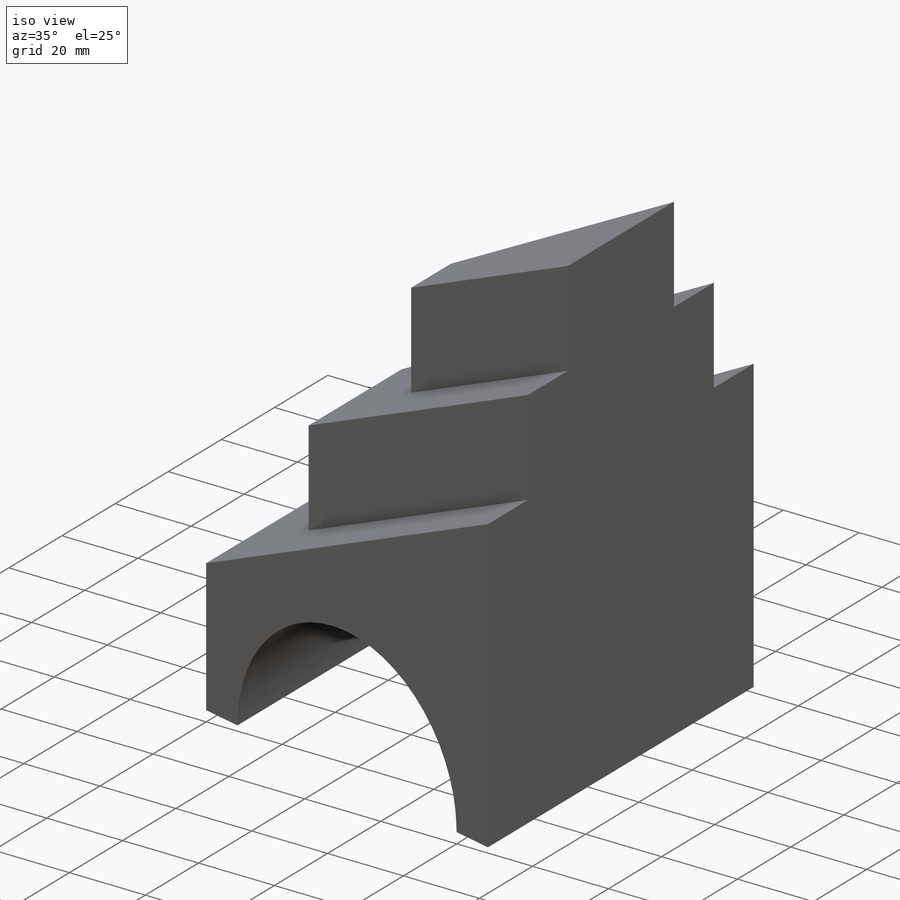
[diagram: iso view]
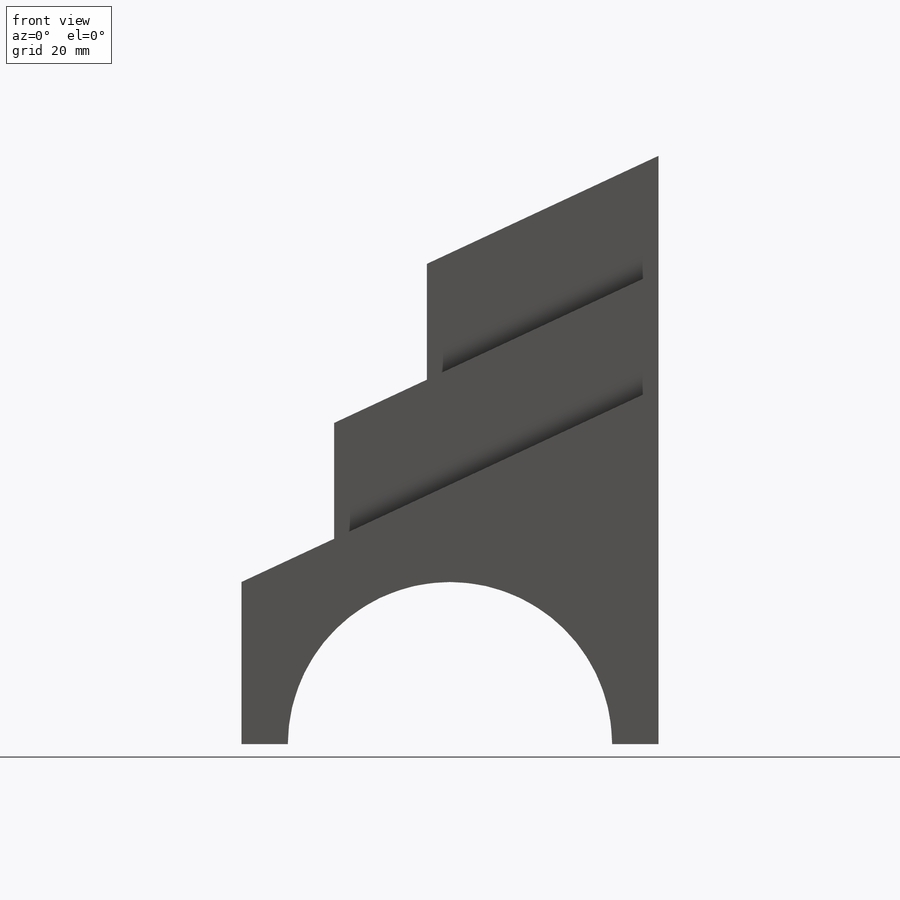
[diagram: front view]
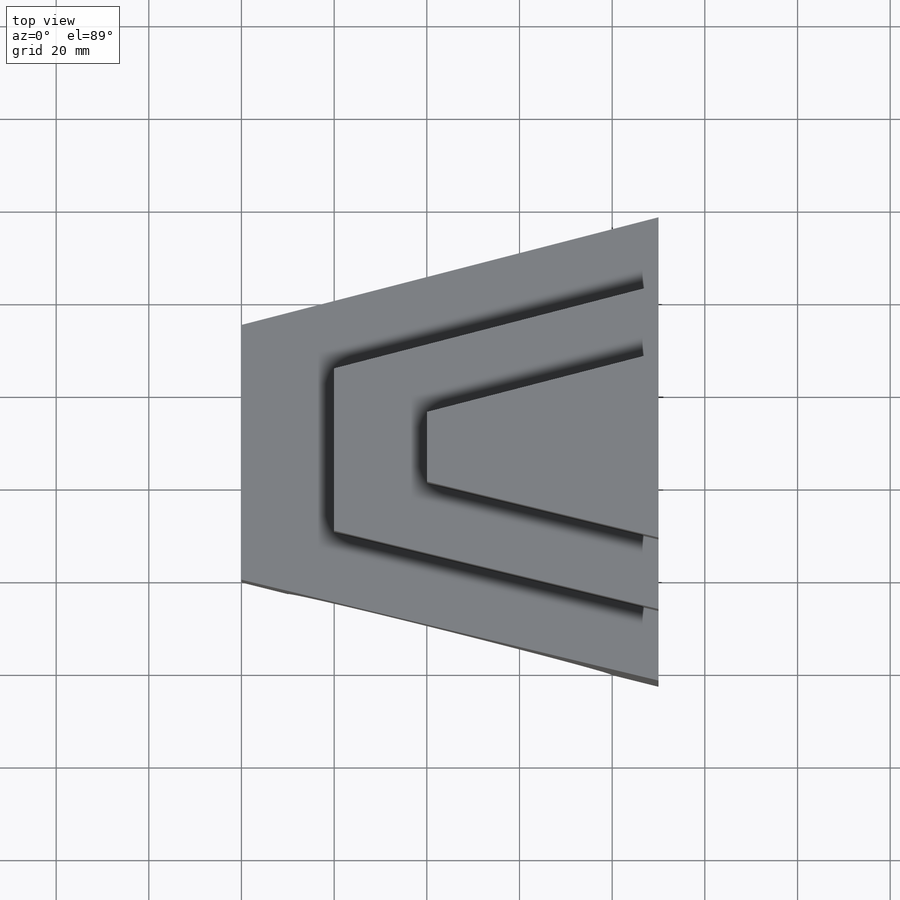
[diagram: top view]
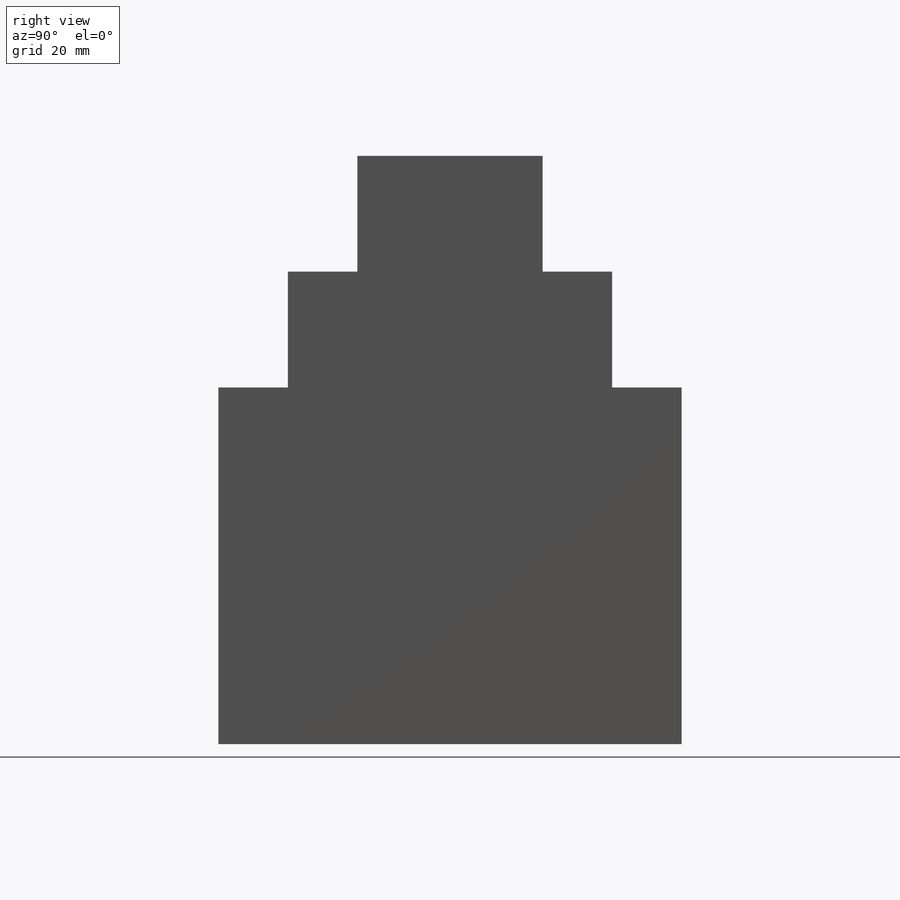
[diagram: right view]
SOLIDWORKS PART (.sldprt)
format: sldprt  version: not decoded by parser v0  size: 278,528 bytes
history: native  units: mm
features: sketch x7, cut_extrude x4, extrude x3, material x1 (+16 scaffold rows collapsed)
feature tree (31):
  scaffold x16  (default folders/planes/origin — collapsed)
  material  "Material <not specified>"
  sketch  "Sketch1"  dims[c1.D1=100.0mm c1.D2=55.0mm c1.D3=90.0mm c1.D4=90.0mm c1.D5=90.0mm c2.D5=25.0deg c2.D6=35.0mm c2.D7=~76.967689mm]
  extrude  "Extrude1"  Depth=76.968mm
  sketch  "Sketch2"  dims[c1.D1=90.0mm c2.D1=25.0deg c2.D2=~85.000311mm]
  cut_extrude  "Extrude2"  Depth=180mm
  sketch  "Sketch3"  dims[c1.D1=35.0mm c1.D2=10.0mm c1.D3=20.0mm c2.D2=~43.844647mm c3.D2=25.0deg c3.D4=60.0mm c3.D5=90.0mm c3.D6=~101.967689mm]
  extrude  "Extrude3"  Depth=101.968mm
  sketch  "Sketch4"
  cut_extrude  "Extrude4"  Depth=152.642mm
  sketch  "Sketch5"  dims[c1.D1=15.0mm c1.D2=20.0mm c1.D3=~46.185813mm c2.D3=25.0deg c2.D4=90.0mm c2.D5=85.0mm c2.D6=~126.967689mm]
  extrude  "Extrude5"  Depth=126.968mm
  sketch  "Sketch6"
  cut_extrude  "Extrude6"  Depth=126.968mm
  sketch  "Sketch7"  dims[D1=10.0mm]
  cut_extrude  "Extrude7"  Depth=176.968mm
decode coverage: 12 of 14 modeling features carry decoded parameters
note: ~ marks probable driven/reference dimensions
note: suppression state not decoded; provenance and decode notes live in map.json
